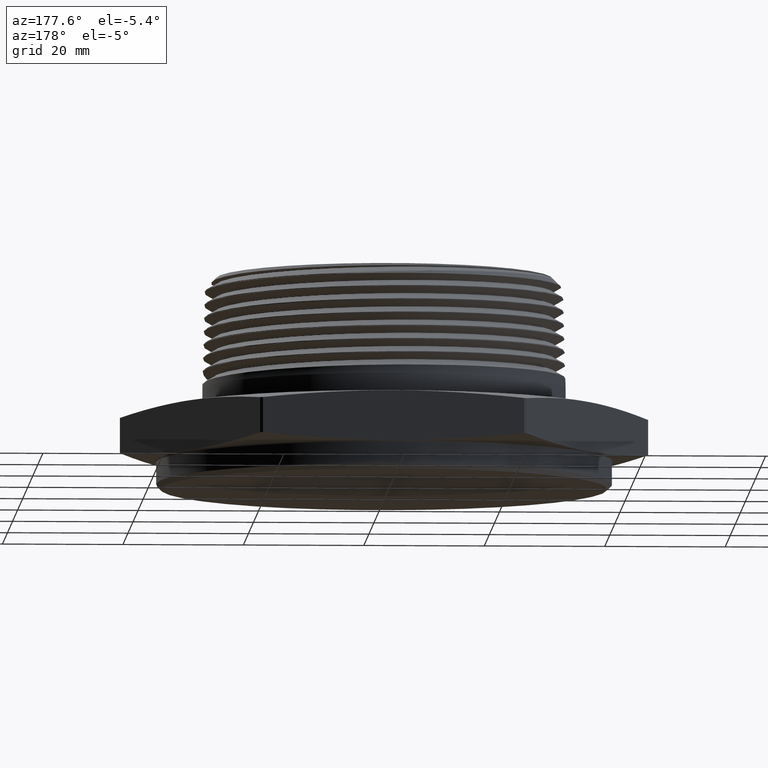
[diagram: clean part render]
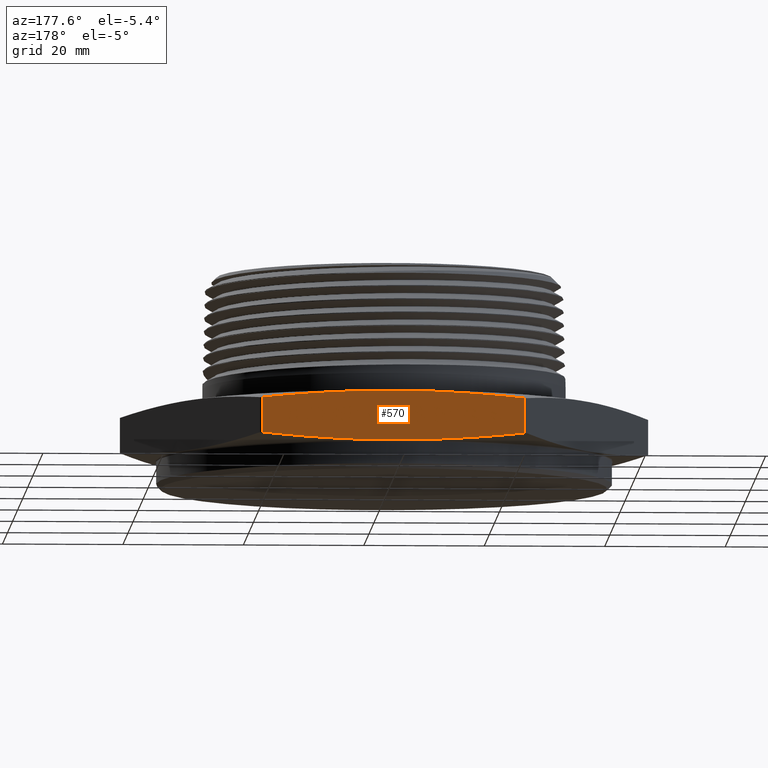
[diagram: same view with one face highlighted and labeled with its STEP entity id]
A machine part, auxiliary view. The second image highlights one B-rep face of the part: STEP entity #570.
In plain terms, the highlighted planar face has unit normal (0, -1, 0).
Its self-contained STEP definition (entity closure, byte-faithful):
#570 = ADVANCED_FACE ( 'NONE', ( #5897 ), #7060, .F. ) ;
#583 = ORIENTED_EDGE ( 'NONE', *, *, #3657, .T. ) ;
#584 = ORIENTED_EDGE ( 'NONE', *, *, #3610, .T. ) ;
#619 = VERTEX_POINT ( 'NONE', #6989 ) ;
#628 = VERTEX_POINT ( 'NONE', #6980 ) ;
#632 = VERTEX_POINT ( 'NONE', #6976 ) ;
#645 = VERTEX_POINT ( 'NONE', #6963 ) ;
#740 = EDGE_LOOP ( 'NONE', ( #583, #584, #6185, #6149 ) ) ;
#3607 = EDGE_CURVE ( 'NONE', #628, #645, #5964, .T. ) ;
#3610 = EDGE_CURVE ( 'NONE', #632, #619, #5969, .T. ) ;
#3657 = EDGE_CURVE ( 'NONE', #645, #632, #7789, .T. ) ;
#3691 = EDGE_CURVE ( 'NONE', #619, #628, #7792, .T. ) ;
#3747 = AXIS2_PLACEMENT_3D ( 'NONE', #7058, #7053, #7052 ) ;
#5897 = FACE_OUTER_BOUND ( 'NONE', #740, .T. ) ;
#5964 = LINE ( 'NONE', #7368, #5966 ) ;
#5966 = VECTOR ( 'NONE', #7369, 39.37007874015748100 ) ;
#5969 = LINE ( 'NONE', #7383, #5972 ) ;
#5972 = VECTOR ( 'NONE', #7384, 39.37007874015748100 ) ;
#6149 = ORIENTED_EDGE ( 'NONE', *, *, #3607, .T. ) ;
#6185 = ORIENTED_EDGE ( 'NONE', *, *, #3691, .T. ) ;
#6717 = CARTESIAN_POINT ( 'NONE',  ( 0.8539621714743428300, 1.500000000000000400, 0.05017414803627098100 ) ) ;
#6718 = CARTESIAN_POINT ( 'NONE',  ( 0.7119403687677250400, 1.500000000000000400, 0.03523882588237485500 ) ) ;
#6723 = CARTESIAN_POINT ( 'NONE',  ( 0.5698554409630800500, 1.500000000000000400, 0.02311823384900137100 ) ) ;
#6724 = CARTESIAN_POINT ( 'NONE',  ( 0.2855135913359622700, 1.500000000000000400, 0.006546213991950650500 ) ) ;
#6725 = CARTESIAN_POINT ( 'NONE',  ( 0.1432555711352084800, 1.500000000000000700, 0.002143762542626225600 ) ) ;
#6726 = CARTESIAN_POINT ( 'NONE',  ( -0.1414571205268098900, 1.500000000000000700, 0.002107483273791513600 ) ) ;
#6727 = CARTESIAN_POINT ( 'NONE',  ( -0.2839118235006993800, 1.500000000000000400, 0.006475060593217718400 ) ) ;
#6728 = CARTESIAN_POINT ( 'NONE',  ( -0.5689969644752558300, 1.500000000000000400, 0.02304618996413260500 ) ) ;
#6729 = CARTESIAN_POINT ( 'NONE',  ( -0.7117519578244633200, 1.500000000000000700, 0.03521901217714588900 ) ) ;
#6730 = CARTESIAN_POINT ( 'NONE',  ( -0.8539621714743428300, 1.500000000000000400, 0.05017414803627087700 ) ) ;
#6827 = CARTESIAN_POINT ( 'NONE',  ( -0.7117519578244634300, 1.500000000000000200, 0.2947809878228538300 ) ) ;
#6828 = CARTESIAN_POINT ( 'NONE',  ( -0.8539621714743428300, 1.500000000000000400, 0.2798258519637289400 ) ) ;
#6832 = CARTESIAN_POINT ( 'NONE',  ( -0.5689969644752560500, 1.500000000000000700, 0.3069538100358671900 ) ) ;
#6833 = CARTESIAN_POINT ( 'NONE',  ( -0.2839118235006993800, 1.500000000000000400, 0.3235249394067818400 ) ) ;
#6834 = CARTESIAN_POINT ( 'NONE',  ( -0.1414571205268103900, 1.500000000000000400, 0.3278925167262080600 ) ) ;
#6835 = CARTESIAN_POINT ( 'NONE',  ( 0.1432555711352078400, 1.500000000000000200, 0.3278562374573733600 ) ) ;
#6836 = CARTESIAN_POINT ( 'NONE',  ( 0.2855135913359616600, 1.500000000000000400, 0.3234537860080488600 ) ) ;
#6837 = CARTESIAN_POINT ( 'NONE',  ( 0.5698554409630795000, 1.500000000000000700, 0.3068817661509981000 ) ) ;
#6838 = CARTESIAN_POINT ( 'NONE',  ( 0.7119403687677248200, 1.500000000000000400, 0.2947611741176245400 ) ) ;
#6839 = CARTESIAN_POINT ( 'NONE',  ( 0.8539621714743428300, 1.500000000000000400, 0.2798258519637287200 ) ) ;
#6963 = CARTESIAN_POINT ( 'NONE',  ( 0.8539621714743428300, 1.500000000000000400, 0.05017414803627098100 ) ) ;
#6976 = CARTESIAN_POINT ( 'NONE',  ( -0.8539621714743428300, 1.500000000000000400, 0.05017414803627087700 ) ) ;
#6980 = CARTESIAN_POINT ( 'NONE',  ( 0.8539621714743428300, 1.500000000000000400, 0.2798258519637287200 ) ) ;
#6989 = CARTESIAN_POINT ( 'NONE',  ( -0.8539621714743428300, 1.500000000000000400, 0.2798258519637289400 ) ) ;
#7052 = DIRECTION ( 'NONE',  ( 0.0000000000000000000, -0.0000000000000000000, -1.000000000000000000 ) ) ;
#7053 = DIRECTION ( 'NONE',  ( 0.0000000000000000000, -1.000000000000000000, 0.0000000000000000000 ) ) ;
#7058 = CARTESIAN_POINT ( 'NONE',  ( 0.8660254037844380400, 1.500000000000000400, 0.3300000000000000200 ) ) ;
#7060 = PLANE ( 'NONE',  #3747 ) ;
#7368 = CARTESIAN_POINT ( 'NONE',  ( 0.8539621714743428300, 1.500000000000000400, -1.071711037660507700E-016 ) ) ;
#7369 = DIRECTION ( 'NONE',  ( -1.254986547952384500E-016, -0.0000000000000000000, -1.000000000000000000 ) ) ;
#7383 = CARTESIAN_POINT ( 'NONE',  ( -0.8539621714743428300, 1.500000000000000400, 1.071711037660507700E-016 ) ) ;
#7384 = DIRECTION ( 'NONE',  ( 1.254986547952384500E-016, 0.0000000000000000000, 1.000000000000000000 ) ) ;
#7789 = B_SPLINE_CURVE_WITH_KNOTS ( 'NONE', 3,
 ( #6717, #6718, #6723, #6724, #6725, #6726, #6727, #6728, #6729, #6730 ),
 .UNSPECIFIED., .F., .F.,
 ( 4, 2, 2, 2, 4 ),
 ( 0.08345157509342437900, 0.09432959701681686800, 0.1052076189402093700, 0.1160856408636018600, 0.1269636627869943600 ),
 .UNSPECIFIED. ) ;
#7792 = B_SPLINE_CURVE_WITH_KNOTS ( 'NONE', 3,
 ( #6828, #6827, #6832, #6833, #6834, #6835, #6836, #6837, #6838, #6839 ),
 .UNSPECIFIED., .F., .F.,
 ( 4, 2, 2, 2, 4 ),
 ( 0.03681967753681141700, 0.04770835183110393900, 0.05859702612539645400, 0.06948570041968897500, 0.08037437471398149700 ),
 .UNSPECIFIED. ) ;